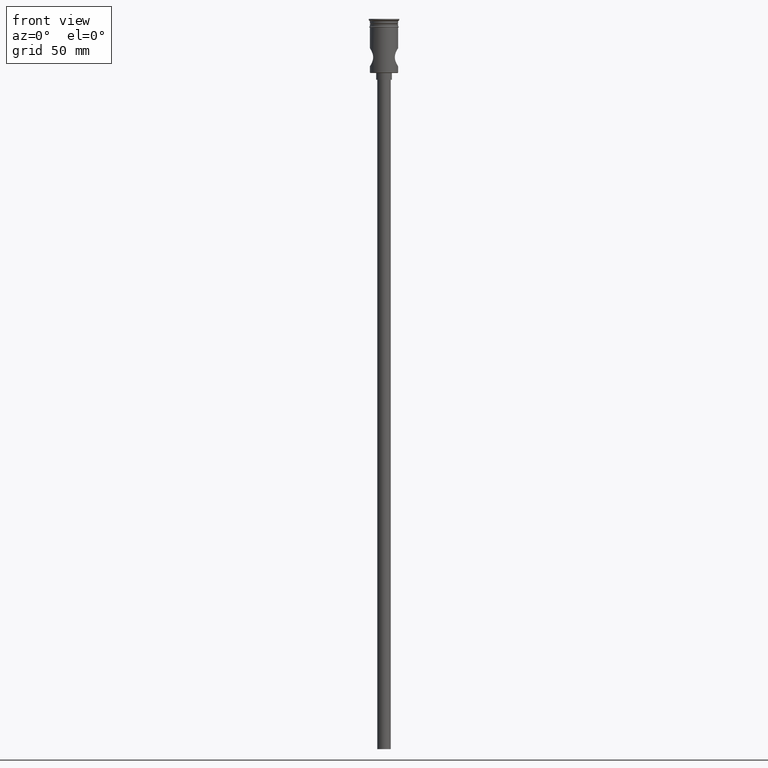
[diagram: clean part render]
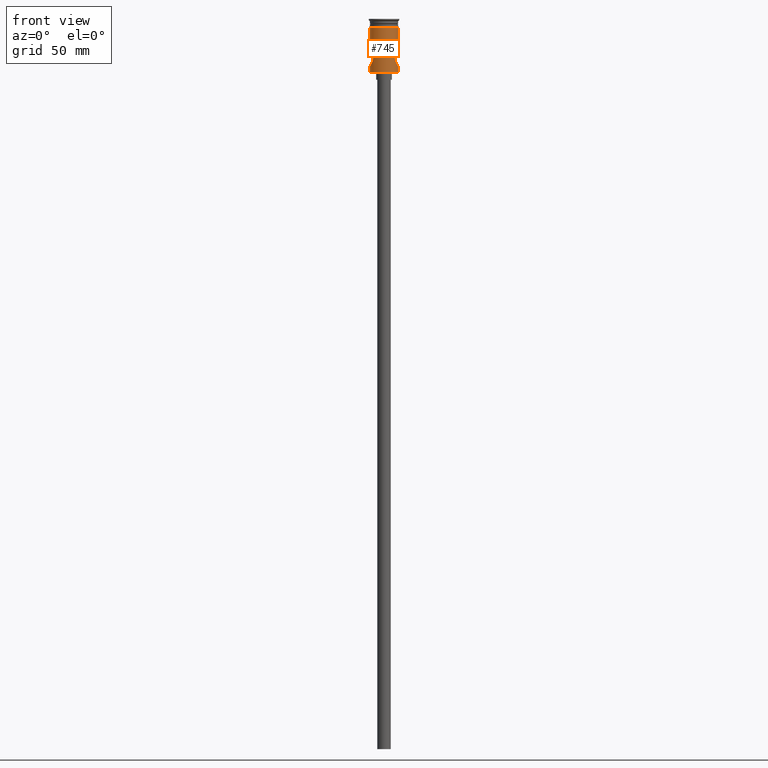
[diagram: same view with one face highlighted and labeled with its STEP entity id]
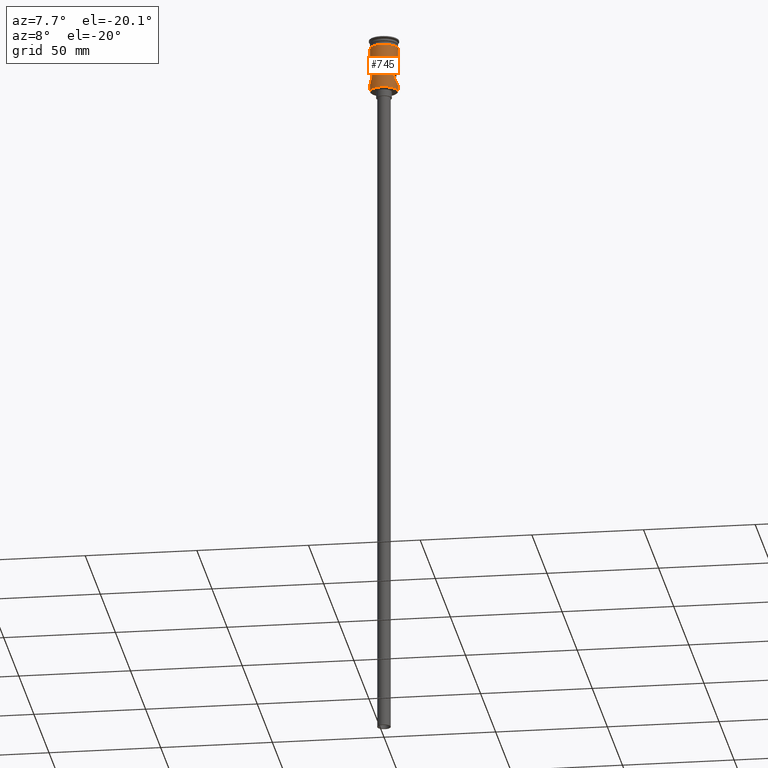
[diagram: same view with one face highlighted and labeled with its STEP entity id]
A machine part, front view. The second image highlights one B-rep face of the part: STEP entity #745.
A second angle (auxiliary view) of the same face is appended — the face is thin or edge-on in the first view.
In plain terms, the highlighted cylindrical surface (edge-blend (fillet) strip) has radius 6.25 mm, axis along (-0, -0, 1).
Its self-contained STEP definition (entity closure, byte-faithful):
#21 = CARTESIAN_POINT ( 'NONE',  ( 6.114329477418027459, -1.319145036220260803, -13.21460998174253376 ) ) ;
#22 = ORIENTED_EDGE ( 'NONE', *, *, #1107, .T. ) ;
#27 = B_SPLINE_CURVE_WITH_KNOTS ( 'NONE', 3,
 ( #1364, #245, #1251, #132, #21, #933, #238, #354, #583, #154, #1376, #36, #369, #1273, #601, #1359, #260, #577, #28, #484, #591, #1029, #467, #817, #1160, #1283, #147, #1051, #724, #1168, #802, #694, #1140, #124 ),
 .UNSPECIFIED., .F., .F.,
 ( 4, 2, 2, 2, 2, 2, 2, 2, 2, 2, 2, 2, 2, 2, 2, 2, 4 ),
 ( 0.01288499613091388663, 0.01368939659999355261, 0.01449379706907321860, 0.01529819753815288286, 0.01610259800723254711, 0.01690699847631221137, 0.01771139894539187909, 0.01851579941447155375, 0.01932019988355122495, 0.02012460035263089961, 0.02092900082171057427, 0.02173340129079024893, 0.02253780175986992360, 0.02334220222894959826, 0.02414660269802927292, 0.02495100316710894758, 0.02575540363618862225 ),
 .UNSPECIFIED. ) ;
#28 = CARTESIAN_POINT ( 'NONE',  ( 4.825781239230279240, -3.972284063760414874, -17.54041839275467396 ) ) ;
#31 = CARTESIAN_POINT ( 'NONE',  ( -6.249999999999997335, 7.654216264208041871E-16, -13.00000000000000178 ) ) ;
#36 = CARTESIAN_POINT ( 'NONE',  ( 5.206907938446021511, -3.461021428213145068, -14.97861188579944169 ) ) ;
#38 = ORIENTED_EDGE ( 'NONE', *, *, #822, .F. ) ;
#49 = CARTESIAN_POINT ( 'NONE',  ( -4.808423248869209132, -3.992729176237255206, -17.27612468243473742 ) ) ;
#53 = DIRECTION ( 'NONE',  ( 1.000000000000000000, 0.000000000000000000, 0.000000000000000000 ) ) ;
#86 = ORIENTED_EDGE ( 'NONE', *, *, #1396, .T. ) ;
#99 = VECTOR ( 'NONE', #201, 1000.000000000000000 ) ;
#102 = CYLINDRICAL_SURFACE ( 'NONE', #142, 6.249999999999997335 ) ;
#118 = CARTESIAN_POINT ( 'NONE',  ( 0.000000000000000000, 0.000000000000000000, 0.000000000000000000 ) ) ;
#124 = CARTESIAN_POINT ( 'NONE',  ( 6.249999999999997335, 0.000000000000000000, -21.00000000000000000 ) ) ;
#132 = CARTESIAN_POINT ( 'NONE',  ( 6.164074639602814543, -1.066532038697448392, -13.13540817069207201 ) ) ;
#134 = CARTESIAN_POINT ( 'NONE',  ( -6.164687649737198960, -1.062348044848976159, -20.86556422819538525 ) ) ;
#140 = CARTESIAN_POINT ( 'NONE',  ( -4.802138272368988048, -4.000246007053879893, -16.73254312814969325 ) ) ;
#142 = AXIS2_PLACEMENT_3D ( 'NONE', #118, #1360, #204 ) ;
#143 = EDGE_LOOP ( 'NONE', ( #1197, #727, #22, #844, #86, #675, #439, #38 ) ) ;
#147 = CARTESIAN_POINT ( 'NONE',  ( 5.749899693983574700, -2.460313010184670190, -20.16433372349642283 ) ) ;
#148 = CARTESIAN_POINT ( 'NONE',  ( -4.831214711204701473, -3.965121035893031998, -17.54400945372712073 ) ) ;
#154 = CARTESIAN_POINT ( 'NONE',  ( 5.477341979971235730, -3.016930584886694966, -14.36123599136882589 ) ) ;
#162 = CARTESIAN_POINT ( 'NONE',  ( -6.249999999999997335, 0.000000000000000000, -21.00000000000000000 ) ) ;
#170 = EDGE_CURVE ( 'NONE', #799, #739, #27, .T. ) ;
#175 = B_SPLINE_CURVE_WITH_KNOTS ( 'NONE', 3,
 ( #162, #262, #1054, #134, #251, #930, #1059, #586, #491, #718, #946, #1164, #710, #1153, #1031, #1292, #148, #49, #1374, #140, #1394, #594, #1040, #1286, #269, #1262, #952, #357, #814, #479, #241, #934, #1380, #373, #1047, #31 ),
 .UNSPECIFIED., .F., .F.,
 ( 4, 2, 2, 2, 2, 2, 2, 2, 2, 2, 2, 2, 2, 2, 2, 2, 2, 4 ),
 ( 0.000000000000000000, 0.0008053122581821236603, 0.001610624516364247321, 0.002415936774546371089, 0.003221249032728494641, 0.004026561290910618193, 0.004831873549092742179, 0.005637185807274865297, 0.006039841936365927290, 0.006442498065456989283, 0.007247810323639102860, 0.008053122581821215570, 0.008858434840003327412, 0.009663747098185439255, 0.01046905935636755110, 0.01127437161454966294, 0.01207968387273177652, 0.01288499613091388663 ),
 .UNSPECIFIED. ) ;
#184 = DIRECTION ( 'NONE',  ( -0.000000000000000000, -0.000000000000000000, 1.000000000000000000 ) ) ;
#201 = DIRECTION ( 'NONE',  ( -0.000000000000000000, -0.000000000000000000, 1.000000000000000000 ) ) ;
#204 = DIRECTION ( 'NONE',  ( 1.000000000000000000, 0.000000000000000000, 0.000000000000000000 ) ) ;
#215 = CARTESIAN_POINT ( 'NONE',  ( 6.249999999999997335, 0.000000000000000000, -21.00000000000000000 ) ) ;
#238 = CARTESIAN_POINT ( 'NONE',  ( 5.913935837839852994, -2.034623446537946467, -13.54656017588377637 ) ) ;
#241 = CARTESIAN_POINT ( 'NONE',  ( -5.988391837247995397, -1.806899946542223301, -13.42158306294210490 ) ) ;
#245 = CARTESIAN_POINT ( 'NONE',  ( 6.249999999999997335, -0.2686376769289282040, -13.00000000000000533 ) ) ;
#251 = CARTESIAN_POINT ( 'NONE',  ( -6.114026958635099263, -1.320340175232682212, -20.78489389917145758 ) ) ;
#260 = CARTESIAN_POINT ( 'NONE',  ( 4.802422975401725580, -3.999904196452368499, -16.73036018978147510 ) ) ;
#262 = CARTESIAN_POINT ( 'NONE',  ( -6.249999999999996447, -0.2727543463386687961, -21.00000000000000000 ) ) ;
#264 = VERTEX_POINT ( 'NONE', #1248 ) ;
#269 = CARTESIAN_POINT ( 'NONE',  ( -5.206751440743287773, -3.461272384981636918, -14.97898070907815082 ) ) ;
#302 = CARTESIAN_POINT ( 'NONE',  ( -6.250000000000000000, 7.654042494670958593E-16, -3.799999999999998490 ) ) ;
#354 = CARTESIAN_POINT ( 'NONE',  ( 5.750233758298144870, -2.459500231391919201, -13.83506748890645177 ) ) ;
#355 = AXIS2_PLACEMENT_3D ( 'NONE', #1252, #437, #1122 ) ;
#357 = CARTESIAN_POINT ( 'NONE',  ( -5.661790489434805451, -2.654755454075937049, -13.99702193126538852 ) ) ;
#369 = CARTESIAN_POINT ( 'NONE',  ( 5.120857647180717009, -3.585368991973340247, -15.20768423525791668 ) ) ;
#370 = CARTESIAN_POINT ( 'NONE',  ( 6.249999999999997335, 0.000000000000000000, 0.000000000000000000 ) ) ;
#373 = CARTESIAN_POINT ( 'NONE',  ( -6.232044628539265219, -0.5423855191400400733, -13.02789404215501001 ) ) ;
#402 = VERTEX_POINT ( 'NONE', #481 ) ;
#437 = DIRECTION ( 'NONE',  ( -0.000000000000000000, -0.000000000000000000, 1.000000000000000000 ) ) ;
#439 = ORIENTED_EDGE ( 'NONE', *, *, #1227, .F. ) ;
#467 = CARTESIAN_POINT ( 'NONE',  ( 5.206988841497393494, -3.460891432102356724, -19.02157827360421649 ) ) ;
#479 = CARTESIAN_POINT ( 'NONE',  ( -5.913555455638629610, -2.035612686894169521, -13.54723019145919061 ) ) ;
#481 = CARTESIAN_POINT ( 'NONE',  ( 6.250000000000000000, 0.000000000000000000, -3.799999999999998490 ) ) ;
#484 = CARTESIAN_POINT ( 'NONE',  ( 4.911801325116378791, -3.865412396458739241, -18.06286392719653122 ) ) ;
#485 = CARTESIAN_POINT ( 'NONE',  ( 6.249999999999997335, -1.737696491133603037E-20, -13.00000000000000178 ) ) ;
#491 = CARTESIAN_POINT ( 'NONE',  ( -5.661391809810276676, -2.655451895015750186, -20.00213912466499977 ) ) ;
#498 = DIRECTION ( 'NONE',  ( -0.000000000000000000, -0.000000000000000000, 1.000000000000000000 ) ) ;
#577 = CARTESIAN_POINT ( 'NONE',  ( 4.802263803571950262, -4.000095295910623960, -17.26678986428583329 ) ) ;
#583 = CARTESIAN_POINT ( 'NONE',  ( 5.660387780671006119, -2.657659777324843375, -13.99970165562461588 ) ) ;
#586 = CARTESIAN_POINT ( 'NONE',  ( -5.750194340831371598, -2.459807751363334738, -20.16490090716441941 ) ) ;
#591 = CARTESIAN_POINT ( 'NONE',  ( 4.974176267482498304, -3.786278089419968573, -18.31616625948624488 ) ) ;
#594 = CARTESIAN_POINT ( 'NONE',  ( -4.910908857697281249, -3.866544190473750753, -15.94095499657158577 ) ) ;
#601 = CARTESIAN_POINT ( 'NONE',  ( 4.911965043129511876, -3.865214286127272914, -15.93577579687968715 ) ) ;
#675 = ORIENTED_EDGE ( 'NONE', *, *, #1403, .F. ) ;
#694 = CARTESIAN_POINT ( 'NONE',  ( 6.231740822880955655, -0.5461195516192444144, -20.97163258066554903 ) ) ;
#710 = CARTESIAN_POINT ( 'NONE',  ( -5.123165928845533124, -3.582077497867478755, -18.79879273275216889 ) ) ;
#718 = CARTESIAN_POINT ( 'NONE',  ( -5.479356339131456366, -3.013210264775688429, -19.64288251551927544 ) ) ;
#724 = CARTESIAN_POINT ( 'NONE',  ( 5.989383838854016595, -1.803127423253947370, -20.58005038865097447 ) ) ;
#727 = ORIENTED_EDGE ( 'NONE', *, *, #1013, .T. ) ;
#731 = CARTESIAN_POINT ( 'NONE',  ( 0.000000000000000000, 0.000000000000000000, -3.799999999999998490 ) ) ;
#739 = VERTEX_POINT ( 'NONE', #215 ) ;
#743 = CARTESIAN_POINT ( 'NONE',  ( -6.249999999999997335, 7.654042494670954648E-16, 0.000000000000000000 ) ) ;
#745 = ADVANCED_FACE ( 'NONE', ( #914 ), #102, .T. ) ;
#786 = LINE ( 'NONE', #911, #99 ) ;
#799 = VERTEX_POINT ( 'NONE', #485 ) ;
#802 = CARTESIAN_POINT ( 'NONE',  ( 6.163072430823098635, -1.072090696093403572, -20.86299539992151963 ) ) ;
#808 = CIRCLE ( 'NONE', #355, 6.249999999999997335 ) ;
#814 = CARTESIAN_POINT ( 'NONE',  ( -5.750599978903006004, -2.458547746251571464, -13.83442243165378827 ) ) ;
#817 = CARTESIAN_POINT ( 'NONE',  ( 5.384721421007716557, -3.177306645323759948, -19.44320909925646745 ) ) ;
#822 = EDGE_CURVE ( 'NONE', #1263, #264, #175, .T. ) ;
#823 = DIRECTION ( 'NONE',  ( -0.000000000000000000, -0.000000000000000000, 1.000000000000000000 ) ) ;
#844 = ORIENTED_EDGE ( 'NONE', *, *, #170, .F. ) ;
#855 = VERTEX_POINT ( 'NONE', #302 ) ;
#899 = VERTEX_POINT ( 'NONE', #1095 ) ;
#911 = CARTESIAN_POINT ( 'NONE',  ( -6.249999999999997335, 7.654042494670954648E-16, 0.000000000000000000 ) ) ;
#914 = FACE_OUTER_BOUND ( 'NONE', #143, .T. ) ;
#930 = CARTESIAN_POINT ( 'NONE',  ( -5.989469057993997758, -1.803020863046996380, -20.58020052144234313 ) ) ;
#933 = CARTESIAN_POINT ( 'NONE',  ( 5.989237698232246387, -1.803940237114654677, -13.42017865839277668 ) ) ;
#934 = CARTESIAN_POINT ( 'NONE',  ( -6.114190400834778494, -1.319999983171425084, -13.21482427928840409 ) ) ;
#944 = LINE ( 'NONE', #370, #1257 ) ;
#946 = CARTESIAN_POINT ( 'NONE',  ( -5.385190306647609226, -3.176522856481460266, -19.44425231175720015 ) ) ;
#952 = CARTESIAN_POINT ( 'NONE',  ( -5.477849716704665362, -3.016083644131741348, -14.36014332702550611 ) ) ;
#973 = CARTESIAN_POINT ( 'NONE',  ( -6.249999999999997335, 7.654042494670954648E-16, -23.80000000000003624 ) ) ;
#1013 = EDGE_CURVE ( 'NONE', #1189, #899, #808, .T. ) ;
#1029 = CARTESIAN_POINT ( 'NONE',  ( 5.122531972781929177, -3.583015140665012144, -18.79727513052315402 ) ) ;
#1031 = CARTESIAN_POINT ( 'NONE',  ( -4.912675777940808786, -3.864304456548189215, -18.06670409317032622 ) ) ;
#1040 = CARTESIAN_POINT ( 'NONE',  ( -4.973336101470287041, -3.787353030156894285, -15.68715760676190563 ) ) ;
#1047 = CARTESIAN_POINT ( 'NONE',  ( -6.249999999999999112, -0.2689421781267080647, -13.00000000000000711 ) ) ;
#1051 = CARTESIAN_POINT ( 'NONE',  ( 5.913885788563145063, -2.034807479538851549, -20.45336162933357471 ) ) ;
#1054 = CARTESIAN_POINT ( 'NONE',  ( -6.232237898845036206, -0.5395998141367348566, -20.97240509153860089 ) ) ;
#1059 = CARTESIAN_POINT ( 'NONE',  ( -5.915422792227349014, -2.030557145266652430, -20.45602222296729877 ) ) ;
#1064 = LINE ( 'NONE', #1204, #1084 ) ;
#1084 = VECTOR ( 'NONE', #184, 1000.000000000000000 ) ;
#1095 = CARTESIAN_POINT ( 'NONE',  ( 6.249999999999997335, 0.000000000000000000, -23.80000000000003624 ) ) ;
#1107 = EDGE_CURVE ( 'NONE', #899, #739, #944, .T. ) ;
#1122 = DIRECTION ( 'NONE',  ( -1.000000000000000000, 0.000000000000000000, 0.000000000000000000 ) ) ;
#1140 = CARTESIAN_POINT ( 'NONE',  ( 6.249999999999999112, -0.2724455289350967702, -20.99999999999999645 ) ) ;
#1153 = CARTESIAN_POINT ( 'NONE',  ( -4.975923930868689560, -3.783951554845878640, -18.32236346240737745 ) ) ;
#1160 = CARTESIAN_POINT ( 'NONE',  ( 5.478961540003949970, -3.013954258834372624, -19.64208427105936039 ) ) ;
#1164 = CARTESIAN_POINT ( 'NONE',  ( -5.207268380668932828, -3.460480907077231549, -19.02231024153899597 ) ) ;
#1168 = CARTESIAN_POINT ( 'NONE',  ( 6.113409876513289376, -1.322953874995596246, -20.78388984173753684 ) ) ;
#1189 = VERTEX_POINT ( 'NONE', #973 ) ;
#1197 = ORIENTED_EDGE ( 'NONE', *, *, #1250, .F. ) ;
#1204 = CARTESIAN_POINT ( 'NONE',  ( 6.249999999999997335, 0.000000000000000000, 0.000000000000000000 ) ) ;
#1208 = CIRCLE ( 'NONE', #1282, 6.250000000000000000 ) ;
#1227 = EDGE_CURVE ( 'NONE', #264, #855, #1305, .T. ) ;
#1248 = CARTESIAN_POINT ( 'NONE',  ( -6.249999999999997335, 7.654216264208041871E-16, -13.00000000000000178 ) ) ;
#1250 = EDGE_CURVE ( 'NONE', #1189, #1263, #786, .T. ) ;
#1251 = CARTESIAN_POINT ( 'NONE',  ( 6.232419858433171811, -0.5387480490642495567, -13.02730429854598881 ) ) ;
#1252 = CARTESIAN_POINT ( 'NONE',  ( 0.000000000000000000, 0.000000000000000000, -23.80000000000003624 ) ) ;
#1257 = VECTOR ( 'NONE', #823, 1000.000000000000000 ) ;
#1262 = CARTESIAN_POINT ( 'NONE',  ( -5.385004267883328311, -3.176853179420966011, -14.55612410836441484 ) ) ;
#1263 = VERTEX_POINT ( 'NONE', #1459 ) ;
#1273 = CARTESIAN_POINT ( 'NONE',  ( 4.973750324045095539, -3.786800967222129888, -15.68569218073068505 ) ) ;
#1282 = AXIS2_PLACEMENT_3D ( 'NONE', #731, #498, #53 ) ;
#1283 = CARTESIAN_POINT ( 'NONE',  ( 5.661379072644873389, -2.655508769898343502, -20.00213303214865945 ) ) ;
#1286 = CARTESIAN_POINT ( 'NONE',  ( -5.120746473117963937, -3.585536293398269070, -15.20792644870654264 ) ) ;
#1292 = CARTESIAN_POINT ( 'NONE',  ( -4.847991640808655411, -3.944700255870591921, -17.67602997726106295 ) ) ;
#1305 = LINE ( 'NONE', #743, #1439 ) ;
#1359 = CARTESIAN_POINT ( 'NONE',  ( 4.825240503227189670, -3.972950559549474736, -16.46323330620749203 ) ) ;
#1360 = DIRECTION ( 'NONE',  ( -0.000000000000000000, -0.000000000000000000, 1.000000000000000000 ) ) ;
#1364 = CARTESIAN_POINT ( 'NONE',  ( 6.249999999999997335, -1.737696491133603037E-20, -13.00000000000000178 ) ) ;
#1374 = CARTESIAN_POINT ( 'NONE',  ( -4.802447716386564203, -3.999874492699598605, -17.13920979298794123 ) ) ;
#1376 = CARTESIAN_POINT ( 'NONE',  ( 5.384821468077245044, -3.177146103492443086, -14.55655532662500562 ) ) ;
#1380 = CARTESIAN_POINT ( 'NONE',  ( -6.163870396126189810, -1.067363126230737702, -13.13573503127911302 ) ) ;
#1394 = CARTESIAN_POINT ( 'NONE',  ( -4.825007590139937186, -3.973221808631874019, -16.46591315726271532 ) ) ;
#1396 = EDGE_CURVE ( 'NONE', #799, #402, #1064, .T. ) ;
#1403 = EDGE_CURVE ( 'NONE', #855, #402, #1208, .T. ) ;
#1418 = DIRECTION ( 'NONE',  ( -0.000000000000000000, -0.000000000000000000, 1.000000000000000000 ) ) ;
#1439 = VECTOR ( 'NONE', #1418, 1000.000000000000000 ) ;
#1459 = CARTESIAN_POINT ( 'NONE',  ( -6.249999999999997335, 0.000000000000000000, -21.00000000000000000 ) ) ;